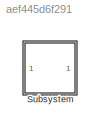
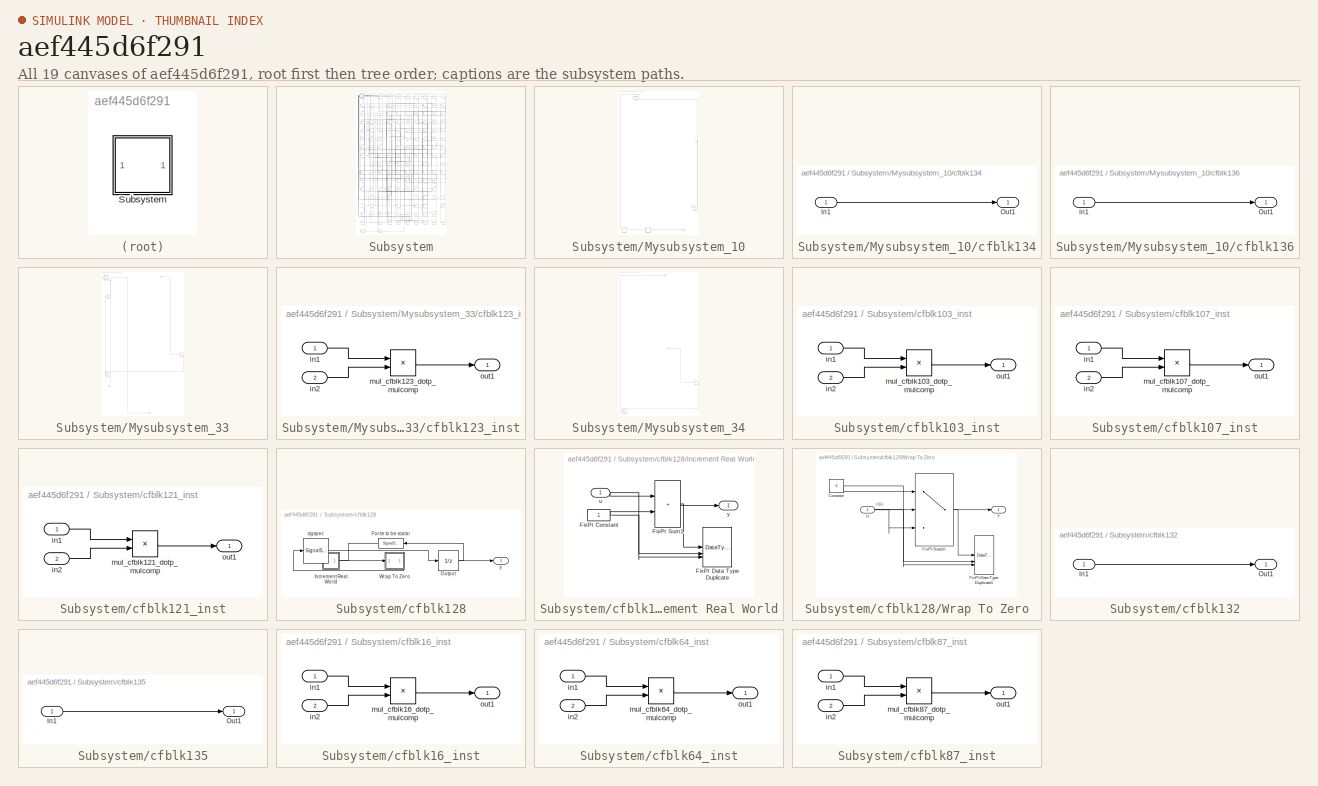
[diagram: thumbnail index - all 19 canvases of the model, root first then tree order]
MODEL slx_aef445d6f291
KIND model
CONFIG AbsTol = auto
CONFIG EnableMultiTasking = off
CONFIG FixedStep = auto
CONFIG MaxStep = auto
CONFIG MinStep = auto
CONFIG RelTol = 1e-3
CONFIG SampleTimeConstraint = Unconstrained
CONFIG SolverName = VariableStepAuto
CONFIG StartTime = 0.0
CONFIG StopTime = 10.0
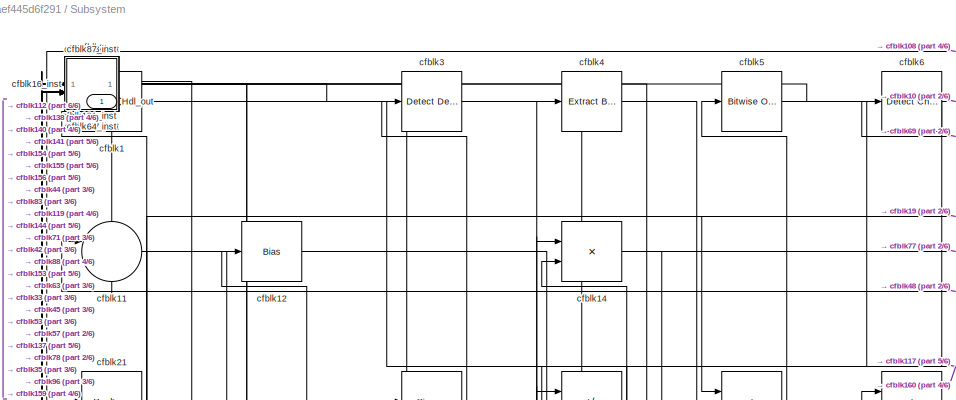
[diagram: Subsystem - part 1/6, top left region]
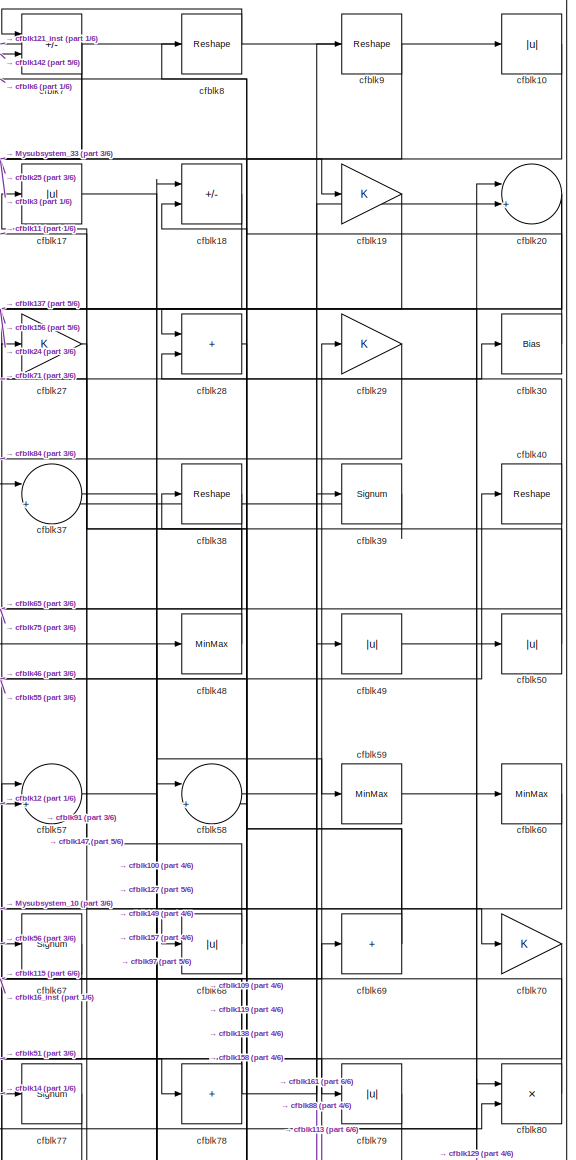
[diagram: Subsystem - part 2/6, top right region]
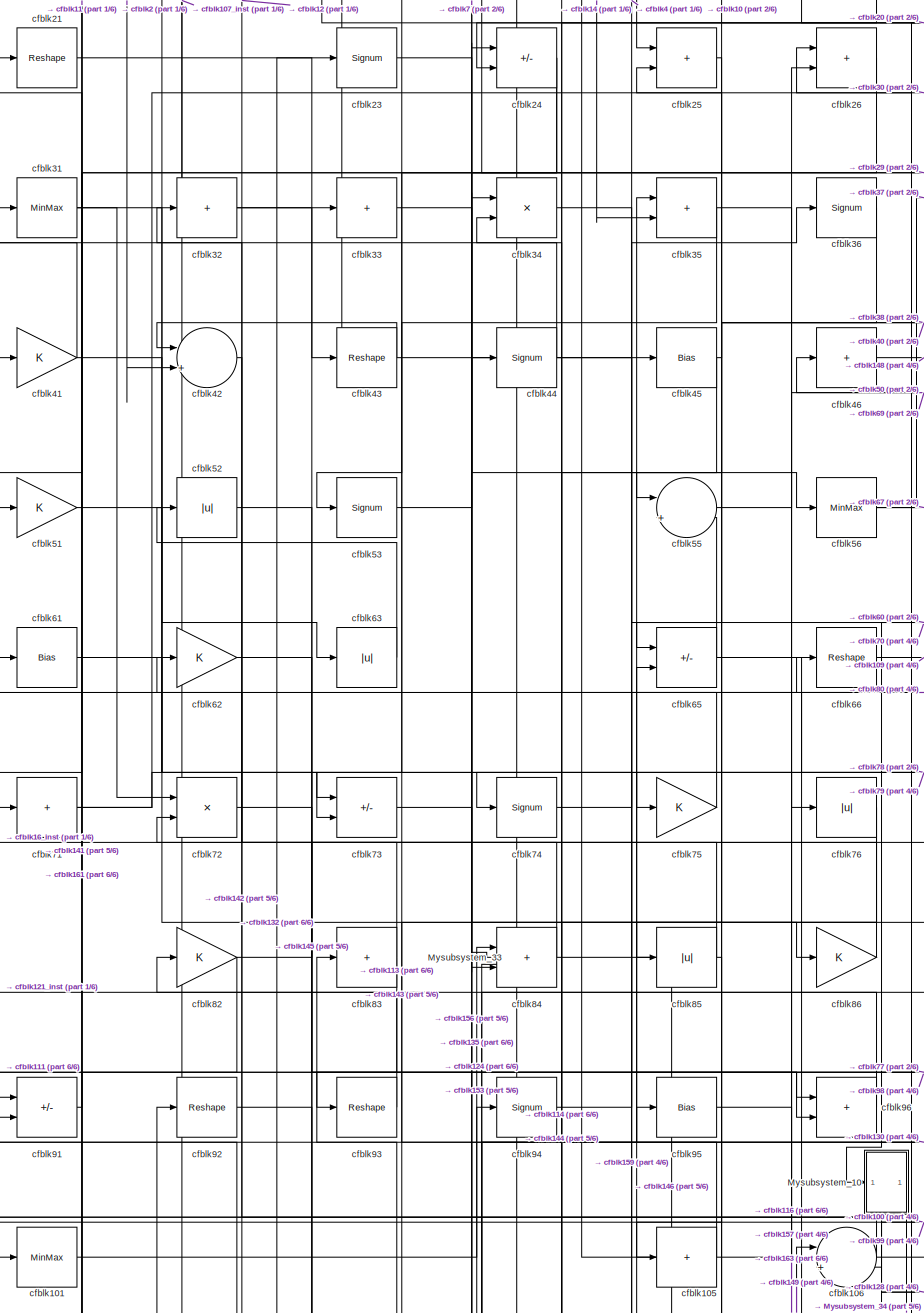
[diagram: Subsystem - part 3/6, middle left region]
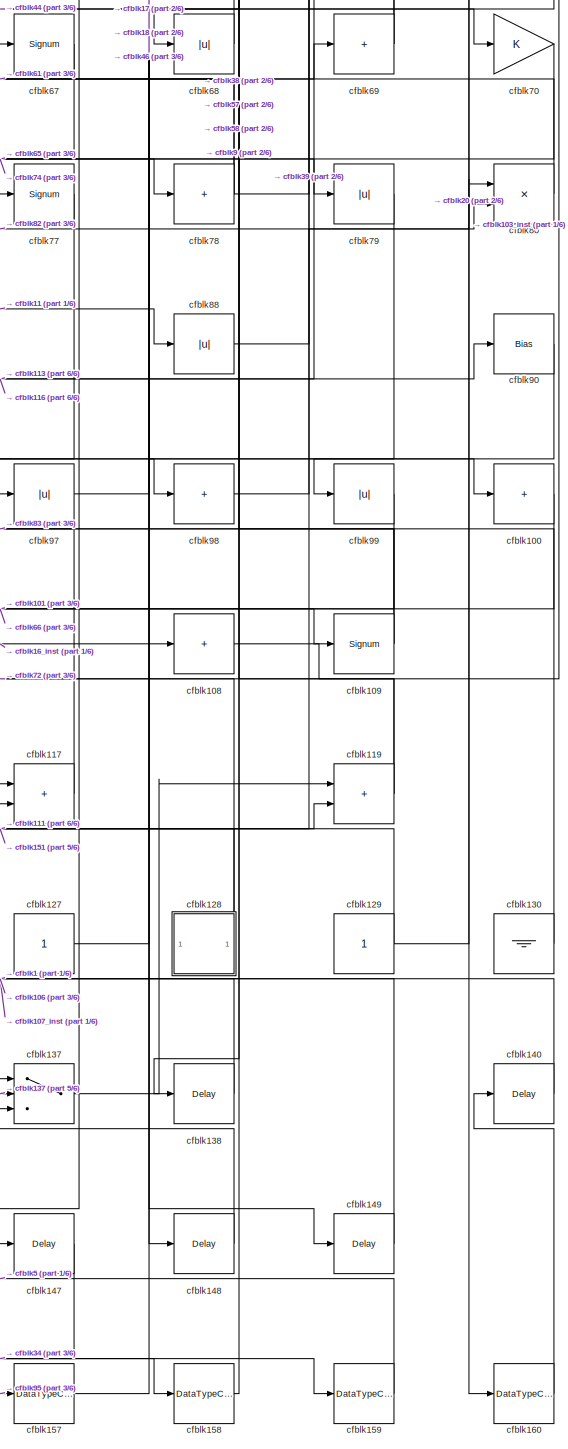
[diagram: Subsystem - part 4/6, middle right region]
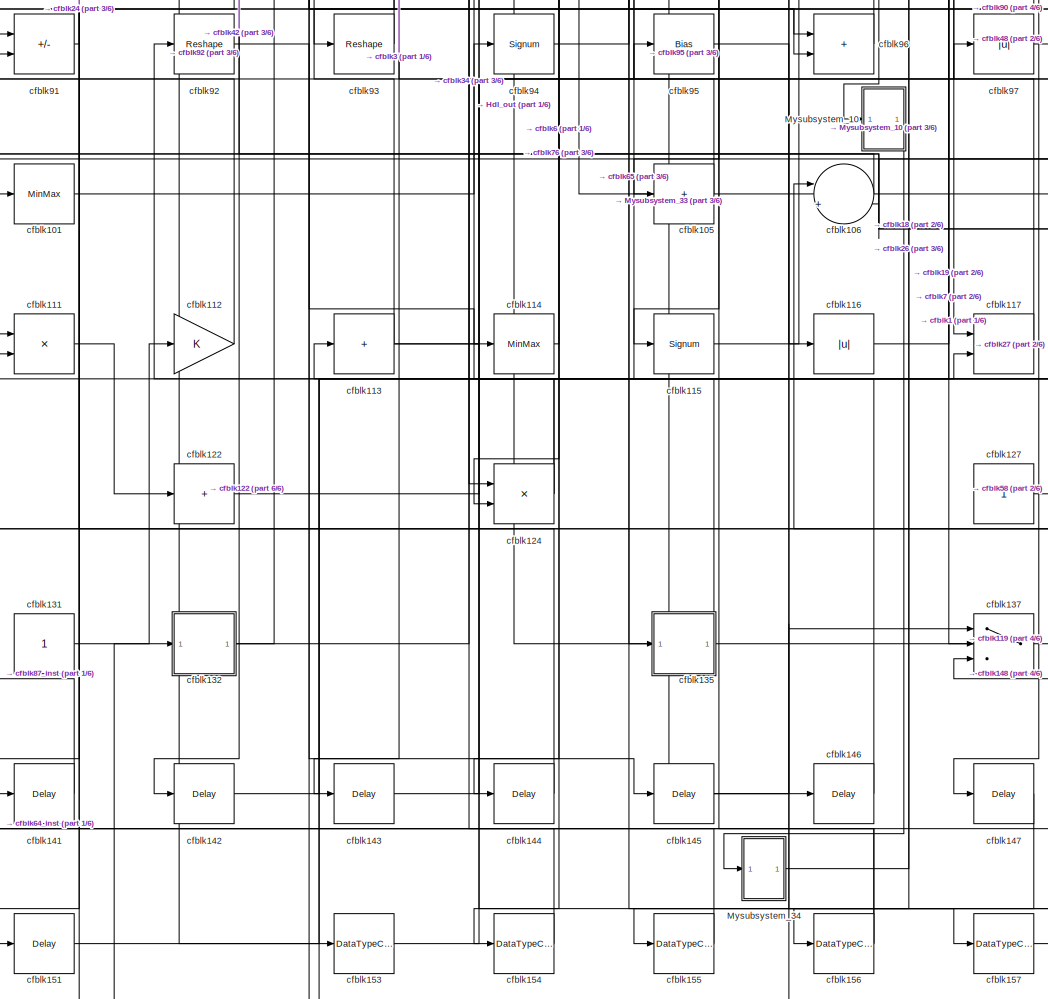
[diagram: Subsystem - part 5/6, bottom center region]
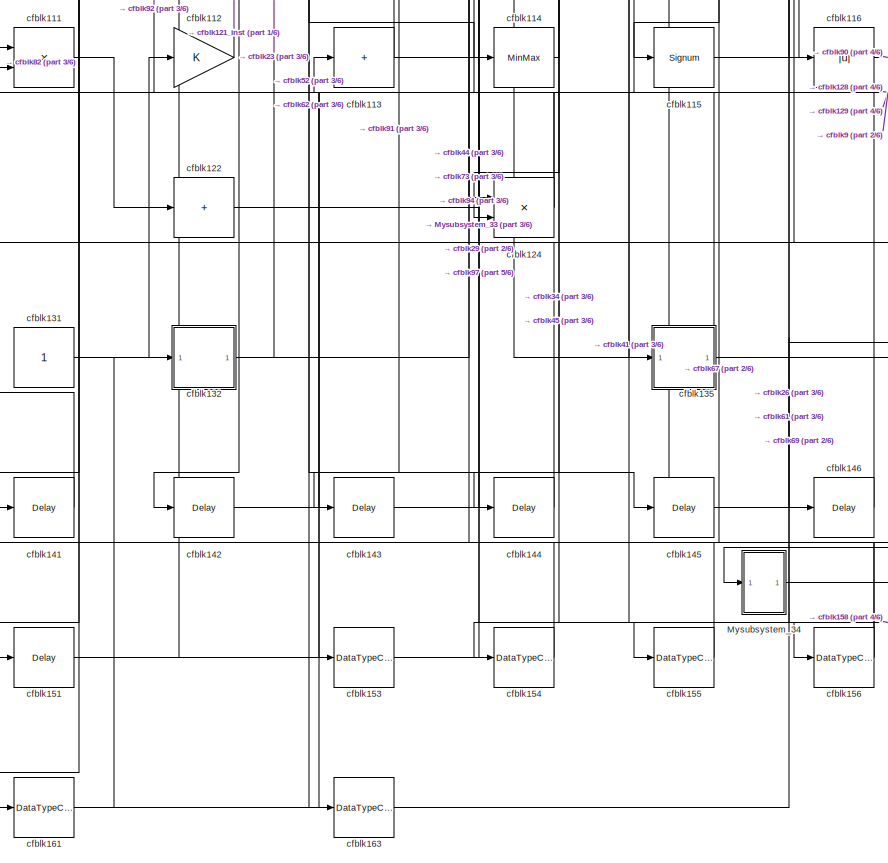
[diagram: Subsystem - part 6/6, bottom left region]
BLOCK [SubSystem] Subsystem
BLOCK [Outport] Subsystem/Hdl_out
  OutDataTypeStr = uint8
  SampleTime = 1
BLOCK [SubSystem] Subsystem/Mysubsystem_10
BLOCK [Inport] Subsystem/Mysubsystem_10/In1
  OutDataTypeStr = uint8
  PortDimensions = 1
  SampleTime = 1
BLOCK [Outport] Subsystem/Mysubsystem_10/Out1
  SampleTime = 1
BLOCK [Abs] Subsystem/Mysubsystem_10/cfblk120
  SaturateOnIntegerOverflow = off
BLOCK [SubSystem] Subsystem/Mysubsystem_10/cfblk134
BLOCK [Inport] Subsystem/Mysubsystem_10/cfblk134/In1
  OutDataTypeStr = uint8
  PortDimensions = 1
  SampleTime = 1
BLOCK [Outport] Subsystem/Mysubsystem_10/cfblk134/Out1
  SampleTime = 1
BLOCK [SubSystem] Subsystem/Mysubsystem_10/cfblk136
BLOCK [Inport] Subsystem/Mysubsystem_10/cfblk136/In1
  OutDataTypeStr = uint8
  PortDimensions = 1
  SampleTime = 1
BLOCK [Outport] Subsystem/Mysubsystem_10/cfblk136/Out1
  SampleTime = 1
BLOCK [Signum] Subsystem/Mysubsystem_10/cfblk15
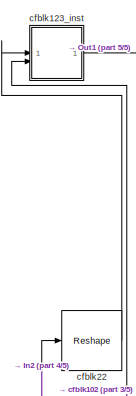
[diagram: Subsystem/Mysubsystem_33 - part 1/5, top left region]
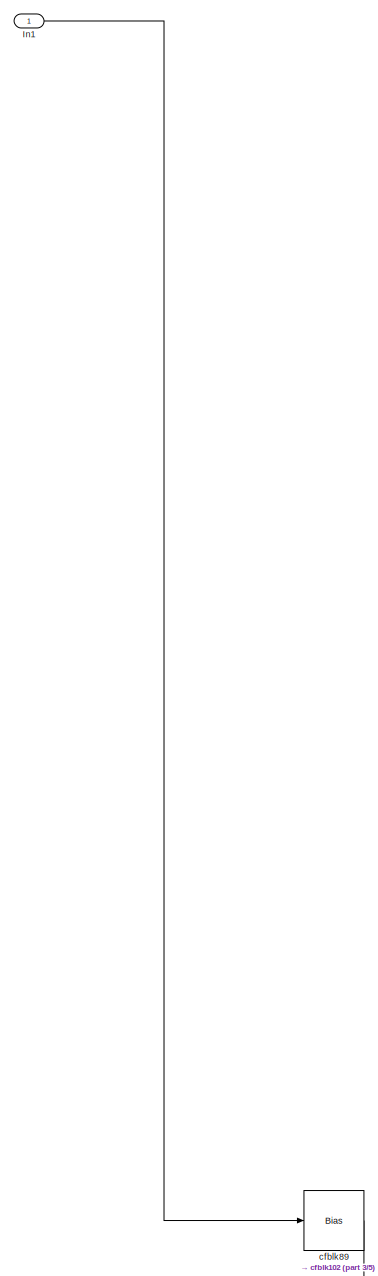
[diagram: Subsystem/Mysubsystem_33 - part 2/5, top right region]
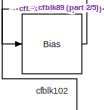
[diagram: Subsystem/Mysubsystem_33 - part 3/5, bottom left region]
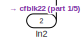
[diagram: Subsystem/Mysubsystem_33 - part 4/5, bottom left region]
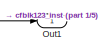
[diagram: Subsystem/Mysubsystem_33 - part 5/5, bottom center region]
BLOCK [SubSystem] Subsystem/Mysubsystem_33
BLOCK [Inport] Subsystem/Mysubsystem_33/In1
  OutDataTypeStr = uint8
  PortDimensions = 1
  SampleTime = 1
BLOCK [Inport] Subsystem/Mysubsystem_33/In2
  OutDataTypeStr = uint8
  Port = 2
  PortDimensions = 1
  SampleTime = 1
BLOCK [Outport] Subsystem/Mysubsystem_33/Out1
  SampleTime = 1
BLOCK [Bias] Subsystem/Mysubsystem_33/cfblk102
  Bias = 0.0
  SaturateOnIntegerOverflow = off
BLOCK [SubSystem] Subsystem/Mysubsystem_33/cfblk123_inst
BLOCK [Inport] Subsystem/Mysubsystem_33/cfblk123_inst/in1
  OutDataTypeStr = uint8
  SampleTime = 1
BLOCK [Inport] Subsystem/Mysubsystem_33/cfblk123_inst/in2
  OutDataTypeStr = uint8
  Port = 2
  SampleTime = 1
BLOCK [Product] Subsystem/Mysubsystem_33/cfblk123_inst/mul_cfblk123_dotp_mulcomp
  Inputs = **
  OutDataTypeStr = uint16
  SampleTime = 1
BLOCK [Outport] Subsystem/Mysubsystem_33/cfblk123_inst/out1
  OutDataTypeStr = uint16
  SampleTime = 1
BLOCK [Reshape] Subsystem/Mysubsystem_33/cfblk22
BLOCK [Bias] Subsystem/Mysubsystem_33/cfblk89
  Bias = 0.0
  SaturateOnIntegerOverflow = off
BLOCK [SubSystem] Subsystem/Mysubsystem_34
BLOCK [Inport] Subsystem/Mysubsystem_34/In1
  OutDataTypeStr = uint8
  PortDimensions = 1
  SampleTime = 1
BLOCK [Outport] Subsystem/Mysubsystem_34/Out1
  SampleTime = 1
BLOCK [Delay] Subsystem/Mysubsystem_34/cfblk139
  InputPortMap = u0
  SampleTime = 1
BLOCK [DataTypeConversion] Subsystem/Mysubsystem_34/cfblk162
  OutDataTypeStr = uint8
  RndMeth = Floor
  SaturateOnIntegerOverflow = off
BLOCK [Logic] Subsystem/cfblk1
  AllPortsSameDT = off
  OutDataTypeStr = boolean
BLOCK [Abs] Subsystem/cfblk10
  OutDataTypeStr = uint8
  SaturateOnIntegerOverflow = off
BLOCK [Sum] Subsystem/cfblk100
  IconShape = rectangular
  Inputs = +
  OutDataTypeStr = uint8
BLOCK [MinMax] Subsystem/cfblk101
  OutDataTypeStr = uint8
BLOCK [SubSystem] Subsystem/cfblk103_inst
BLOCK [Inport] Subsystem/cfblk103_inst/in1
  OutDataTypeStr = uint8
  SampleTime = 1
BLOCK [Inport] Subsystem/cfblk103_inst/in2
  OutDataTypeStr = uint8
  Port = 2
  SampleTime = 1
BLOCK [Product] Subsystem/cfblk103_inst/mul_cfblk103_dotp_mulcomp
  Inputs = **
  OutDataTypeStr = uint8
  SampleTime = 1
BLOCK [Outport] Subsystem/cfblk103_inst/out1
  OutDataTypeStr = uint8
  SampleTime = 1
BLOCK [Sum] Subsystem/cfblk105
  IconShape = rectangular
  Inputs = +
  OutDataTypeStr = uint8
BLOCK [Sum] Subsystem/cfblk106
  Inputs = |++
  OutDataTypeStr = uint8
BLOCK [SubSystem] Subsystem/cfblk107_inst
BLOCK [Inport] Subsystem/cfblk107_inst/in1
  OutDataTypeStr = uint8
  SampleTime = 1
BLOCK [Inport] Subsystem/cfblk107_inst/in2
  OutDataTypeStr = uint8
  Port = 2
  SampleTime = 1
BLOCK [Product] Subsystem/cfblk107_inst/mul_cfblk107_dotp_mulcomp
  Inputs = **
  OutDataTypeStr = uint8
  SampleTime = 1
BLOCK [Outport] Subsystem/cfblk107_inst/out1
  OutDataTypeStr = uint8
  SampleTime = 1
BLOCK [Sum] Subsystem/cfblk108
  IconShape = rectangular
  Inputs = +
  OutDataTypeStr = uint8
BLOCK [Signum] Subsystem/cfblk109
BLOCK [Sum] Subsystem/cfblk11
  Inputs = |++
  OutDataTypeStr = uint8
BLOCK [Product] Subsystem/cfblk111
  Inputs = */
  OutDataTypeStr = uint8
  RndMeth = Zero
  SaturateOnIntegerOverflow = on
BLOCK [Gain] Subsystem/cfblk112
  OutDataTypeStr = uint8
BLOCK [Sum] Subsystem/cfblk113
  IconShape = rectangular
  Inputs = +
  OutDataTypeStr = uint8
BLOCK [MinMax] Subsystem/cfblk114
  OutDataTypeStr = uint8
BLOCK [Signum] Subsystem/cfblk115
BLOCK [Abs] Subsystem/cfblk116
  OutDataTypeStr = uint8
  SaturateOnIntegerOverflow = off
BLOCK [Sum] Subsystem/cfblk117
  IconShape = rectangular
  OutDataTypeStr = uint8
BLOCK [Sum] Subsystem/cfblk119
  IconShape = rectangular
  OutDataTypeStr = uint8
BLOCK [Bias] Subsystem/cfblk12
  Bias = 0.0
  SaturateOnIntegerOverflow = off
BLOCK [SubSystem] Subsystem/cfblk121_inst
BLOCK [Inport] Subsystem/cfblk121_inst/in1
  OutDataTypeStr = uint8
  SampleTime = 1
BLOCK [Inport] Subsystem/cfblk121_inst/in2
  OutDataTypeStr = uint8
  Port = 2
  SampleTime = 1
BLOCK [Product] Subsystem/cfblk121_inst/mul_cfblk121_dotp_mulcomp
  Inputs = **
  OutDataTypeStr = uint8
  SampleTime = 1
BLOCK [Outport] Subsystem/cfblk121_inst/out1
  OutDataTypeStr = uint8
  SampleTime = 1
BLOCK [Sum] Subsystem/cfblk122
  IconShape = rectangular
  Inputs = +
  OutDataTypeStr = uint8
BLOCK [Product] Subsystem/cfblk124
  Inputs = */
  OutDataTypeStr = uint8
  RndMeth = Zero
  SaturateOnIntegerOverflow = on
BLOCK [Constant] Subsystem/cfblk127
  OutDataTypeStr = uint8
  SampleTime = -1
BLOCK [SubSystem] Subsystem/cfblk128
BLOCK [SignalSpecification] Subsystem/cfblk128/Force to be scalar
  Dimensions = 1
  DisableCoverage = on
BLOCK [SubSystem] Subsystem/cfblk128/Increment Real World
BLOCK [Constant] Subsystem/cfblk128/Increment Real World/FixPt Constant
  DisableCoverage = on
  OutDataTypeStr = Inherit: Inherit via back propagation
  SampleTime = -1
BLOCK [DataTypeDuplicate] Subsystem/cfblk128/Increment Real World/FixPt Data Type Duplicate
  DisableCoverage = on
  NumInputPorts = 3
BLOCK [Sum] Subsystem/cfblk128/Increment Real World/FixPt Sum1
  IconShape = rectangular
  InputSameDT = on
  LockScale = on
  OutDataTypeStr = Inherit: Inherit via back propagation
BLOCK [Inport] Subsystem/cfblk128/Increment Real World/u
  OutDataTypeStr = uint8
  SampleTime = 1
BLOCK [Outport] Subsystem/cfblk128/Increment Real World/y
  SampleTime = 1
BLOCK [UnitDelay] Subsystem/cfblk128/Output
  HasFrameUpgradeWarning = on
  InitialCondition = 0.0
  SampleTime = tsamp
BLOCK [SubSystem] Subsystem/cfblk128/Wrap To Zero
BLOCK [Constant] Subsystem/cfblk128/Wrap To Zero/Constant
  DisableCoverage = on
  OutDataTypeStr = Inherit: Inherit via back propagation
  SampleTime = -1
  Value = 0
BLOCK [DataTypeDuplicate] Subsystem/cfblk128/Wrap To Zero/FixPt Data Type Duplicate1
  DisableCoverage = on
  NumInputPorts = 3
BLOCK [Switch] Subsystem/cfblk128/Wrap To Zero/FixPt Switch
  Criteria = u2 > Threshold
  InputSameDT = off
  OutDataTypeStr = Inherit: Inherit via back propagation
  SaturateOnIntegerOverflow = off
  Threshold = Threshold
  ZeroCross = off
BLOCK [Inport] Subsystem/cfblk128/Wrap To Zero/U
  OutDataTypeStr = uint8
  SampleTime = 1
BLOCK [Outport] Subsystem/cfblk128/Wrap To Zero/Y
  SampleTime = 1
BLOCK [SignalSpecification] Subsystem/cfblk128/sigspec
  Dimensions = 1
  OutDataTypeStr = uint8
BLOCK [Outport] Subsystem/cfblk128/y
  SampleTime = 1
BLOCK [Constant] Subsystem/cfblk129
  OutDataTypeStr = uint8
  SampleTime = -1
BLOCK [Ground] Subsystem/cfblk130
BLOCK [Constant] Subsystem/cfblk131
  OutDataTypeStr = uint8
  SampleTime = -1
BLOCK [SubSystem] Subsystem/cfblk132
BLOCK [Inport] Subsystem/cfblk132/In1
  OutDataTypeStr = uint8
  PortDimensions = 1
  SampleTime = 1
BLOCK [Outport] Subsystem/cfblk132/Out1
  SampleTime = 1
BLOCK [SubSystem] Subsystem/cfblk135
BLOCK [Inport] Subsystem/cfblk135/In1
  OutDataTypeStr = uint8
  PortDimensions = 1
  SampleTime = 1
BLOCK [Outport] Subsystem/cfblk135/Out1
  SampleTime = 1
BLOCK [Switch] Subsystem/cfblk137
  InputSameDT = off
  OutDataTypeStr = uint8
  SaturateOnIntegerOverflow = off
BLOCK [Delay] Subsystem/cfblk138
  InputPortMap = u0
  SampleTime = 1
BLOCK [Product] Subsystem/cfblk14
  Inputs = */
  OutDataTypeStr = uint8
  RndMeth = Zero
  SaturateOnIntegerOverflow = on
BLOCK [Delay] Subsystem/cfblk140
  InputPortMap = u0
  SampleTime = 1
BLOCK [Delay] Subsystem/cfblk141
  InputPortMap = u0
  SampleTime = 1
BLOCK [Delay] Subsystem/cfblk142
  InputPortMap = u0
  SampleTime = 1
BLOCK [Delay] Subsystem/cfblk143
  InputPortMap = u0
  SampleTime = 1
BLOCK [Delay] Subsystem/cfblk144
  InputPortMap = u0
  SampleTime = 1
BLOCK [Delay] Subsystem/cfblk145
  InputPortMap = u0
  SampleTime = 1
BLOCK [Delay] Subsystem/cfblk146
  InputPortMap = u0
  SampleTime = 1
BLOCK [Delay] Subsystem/cfblk147
  InputPortMap = u0
  SampleTime = 1
BLOCK [Delay] Subsystem/cfblk148
  InputPortMap = u0
  SampleTime = 1
BLOCK [Delay] Subsystem/cfblk149
  InputPortMap = u0
  SampleTime = 1
BLOCK [Delay] Subsystem/cfblk151
  InputPortMap = u0
  SampleTime = 1
BLOCK [DataTypeConversion] Subsystem/cfblk153
  OutDataTypeStr = uint8
  RndMeth = Floor
  SaturateOnIntegerOverflow = off
BLOCK [DataTypeConversion] Subsystem/cfblk154
  OutDataTypeStr = uint8
  RndMeth = Floor
  SaturateOnIntegerOverflow = off
BLOCK [DataTypeConversion] Subsystem/cfblk155
  OutDataTypeStr = uint8
  RndMeth = Floor
  SaturateOnIntegerOverflow = off
BLOCK [DataTypeConversion] Subsystem/cfblk156
  OutDataTypeStr = uint8
  RndMeth = Floor
  SaturateOnIntegerOverflow = off
BLOCK [DataTypeConversion] Subsystem/cfblk157
  OutDataTypeStr = uint8
  RndMeth = Floor
  SaturateOnIntegerOverflow = off
BLOCK [DataTypeConversion] Subsystem/cfblk158
  OutDataTypeStr = uint8
  RndMeth = Floor
  SaturateOnIntegerOverflow = off
BLOCK [DataTypeConversion] Subsystem/cfblk159
  OutDataTypeStr = uint8
  RndMeth = Floor
  SaturateOnIntegerOverflow = off
BLOCK [DataTypeConversion] Subsystem/cfblk160
  OutDataTypeStr = uint8
  RndMeth = Floor
  SaturateOnIntegerOverflow = off
BLOCK [DataTypeConversion] Subsystem/cfblk161
  OutDataTypeStr = uint8
  RndMeth = Floor
  SaturateOnIntegerOverflow = off
BLOCK [DataTypeConversion] Subsystem/cfblk163
  OutDataTypeStr = uint8
  RndMeth = Floor
  SaturateOnIntegerOverflow = off
BLOCK [SubSystem] Subsystem/cfblk16_inst
BLOCK [Inport] Subsystem/cfblk16_inst/in1
  OutDataTypeStr = uint8
  SampleTime = 1
BLOCK [Inport] Subsystem/cfblk16_inst/in2
  OutDataTypeStr = uint8
  Port = 2
  SampleTime = 1
BLOCK [Product] Subsystem/cfblk16_inst/mul_cfblk16_dotp_mulcomp
  Inputs = **
  OutDataTypeStr = uint8
  SampleTime = 1
BLOCK [Outport] Subsystem/cfblk16_inst/out1
  OutDataTypeStr = uint8
  SampleTime = 1
BLOCK [Abs] Subsystem/cfblk17
  OutDataTypeStr = uint8
  SaturateOnIntegerOverflow = off
BLOCK [Sum] Subsystem/cfblk18
  IconShape = rectangular
  Inputs = +-
  OutDataTypeStr = uint8
BLOCK [Gain] Subsystem/cfblk19
  OutDataTypeStr = uint8
BLOCK [Constant] Subsystem/cfblk2
  OutDataTypeStr = uint8
  SampleTime = 1
  Value = 0
BLOCK [Sum] Subsystem/cfblk20
  Inputs = |++
  OutDataTypeStr = uint8
BLOCK [Reshape] Subsystem/cfblk21
BLOCK [Signum] Subsystem/cfblk23
BLOCK [Sum] Subsystem/cfblk24
  IconShape = rectangular
  Inputs = +-
  OutDataTypeStr = uint8
BLOCK [Sum] Subsystem/cfblk25
  IconShape = rectangular
  OutDataTypeStr = uint8
BLOCK [Sum] Subsystem/cfblk26
  IconShape = rectangular
  OutDataTypeStr = uint8
BLOCK [Gain] Subsystem/cfblk27
  OutDataTypeStr = uint8
BLOCK [Sum] Subsystem/cfblk28
  IconShape = rectangular
  OutDataTypeStr = uint8
BLOCK [Gain] Subsystem/cfblk29
  OutDataTypeStr = uint8
BLOCK [Reference] Subsystem/cfblk3  REF=simulink/Logic and Bit
Operations/Detect
Decrease
  LibrarySourceBlock = hdlsllib/Logic and Bit\nOperations/Detect\nDecrease
  SourceBlock = simulink/Logic and Bit\nOperations/Detect\nDecrease
  SourceType = Detect Decrease
BLOCK [Bias] Subsystem/cfblk30
  Bias = 0.0
  SaturateOnIntegerOverflow = off
BLOCK [MinMax] Subsystem/cfblk31
  OutDataTypeStr = uint8
BLOCK [Sum] Subsystem/cfblk32
  IconShape = rectangular
  Inputs = +
  OutDataTypeStr = uint8
BLOCK [Sum] Subsystem/cfblk33
  IconShape = rectangular
  Inputs = +
  OutDataTypeStr = uint8
BLOCK [Product] Subsystem/cfblk34
  Inputs = */
  OutDataTypeStr = uint8
  RndMeth = Zero
  SaturateOnIntegerOverflow = on
BLOCK [Sum] Subsystem/cfblk35
  IconShape = rectangular
  OutDataTypeStr = uint8
BLOCK [Signum] Subsystem/cfblk36
BLOCK [Sum] Subsystem/cfblk37
  Inputs = |++
  OutDataTypeStr = uint8
BLOCK [Reshape] Subsystem/cfblk38
BLOCK [Signum] Subsystem/cfblk39
BLOCK [Reference] Subsystem/cfblk4  REF=simulink/Logic and Bit
Operations/Extract Bits
  LibrarySourceBlock = hdlsllib/Logic and Bit\nOperations/Extract Bits
  SourceBlock = simulink/Logic and Bit\nOperations/Extract Bits
  SourceType = Extract Bits
BLOCK [Reshape] Subsystem/cfblk40
BLOCK [Gain] Subsystem/cfblk41
  OutDataTypeStr = uint8
BLOCK [Sum] Subsystem/cfblk42
  Inputs = |++
  OutDataTypeStr = uint8
BLOCK [Reshape] Subsystem/cfblk43
BLOCK [Signum] Subsystem/cfblk44
BLOCK [Bias] Subsystem/cfblk45
  Bias = 0.0
  SaturateOnIntegerOverflow = off
BLOCK [Sum] Subsystem/cfblk46
  IconShape = rectangular
  Inputs = +
  OutDataTypeStr = uint8
BLOCK [MinMax] Subsystem/cfblk48
  OutDataTypeStr = uint8
BLOCK [Abs] Subsystem/cfblk49
  OutDataTypeStr = uint8
  SaturateOnIntegerOverflow = off
BLOCK [Reference] Subsystem/cfblk5  REF=simulink/Logic and Bit
Operations/Bitwise
Operator
  LibrarySourceBlock = hdlsllib/Logic and Bit\nOperations/Bitwise\nOperator
  SourceBlock = simulink/Logic and Bit\nOperations/Bitwise\nOperator
  SourceType = Bitwise Operator
BLOCK [Abs] Subsystem/cfblk50
  OutDataTypeStr = uint8
  SaturateOnIntegerOverflow = off
BLOCK [Gain] Subsystem/cfblk51
  OutDataTypeStr = uint8
BLOCK [Abs] Subsystem/cfblk52
  OutDataTypeStr = uint8
  SaturateOnIntegerOverflow = off
BLOCK [Signum] Subsystem/cfblk53
BLOCK [Sum] Subsystem/cfblk55
  Inputs = |++
  OutDataTypeStr = uint8
BLOCK [MinMax] Subsystem/cfblk56
  OutDataTypeStr = uint8
BLOCK [Sum] Subsystem/cfblk57
  Inputs = |++
  OutDataTypeStr = uint8
BLOCK [Sum] Subsystem/cfblk58
  Inputs = |++
  OutDataTypeStr = uint8
BLOCK [MinMax] Subsystem/cfblk59
  OutDataTypeStr = uint8
BLOCK [Reference] Subsystem/cfblk6  REF=simulink/Logic and Bit
Operations/Detect
Change
  LibrarySourceBlock = hdlsllib/Logic and Bit\nOperations/Detect\nChange
  SourceBlock = simulink/Logic and Bit\nOperations/Detect\nChange
  SourceType = Detect Change
BLOCK [MinMax] Subsystem/cfblk60
  OutDataTypeStr = uint8
BLOCK [Bias] Subsystem/cfblk61
  Bias = 0.0
  SaturateOnIntegerOverflow = off
BLOCK [Gain] Subsystem/cfblk62
  OutDataTypeStr = uint8
BLOCK [Abs] Subsystem/cfblk63
  OutDataTypeStr = uint8
  SaturateOnIntegerOverflow = off
BLOCK [SubSystem] Subsystem/cfblk64_inst
BLOCK [Inport] Subsystem/cfblk64_inst/in1
  OutDataTypeStr = uint8
  SampleTime = 1
BLOCK [Inport] Subsystem/cfblk64_inst/in2
  OutDataTypeStr = uint8
  Port = 2
  SampleTime = 1
BLOCK [Product] Subsystem/cfblk64_inst/mul_cfblk64_dotp_mulcomp
  Inputs = **
  OutDataTypeStr = uint8
  SampleTime = 1
BLOCK [Outport] Subsystem/cfblk64_inst/out1
  OutDataTypeStr = uint8
  SampleTime = 1
BLOCK [Sum] Subsystem/cfblk65
  IconShape = rectangular
  Inputs = +-
  OutDataTypeStr = uint8
BLOCK [Reshape] Subsystem/cfblk66
BLOCK [Signum] Subsystem/cfblk67
BLOCK [Abs] Subsystem/cfblk68
  OutDataTypeStr = uint8
  SaturateOnIntegerOverflow = off
BLOCK [Sum] Subsystem/cfblk69
  IconShape = rectangular
  Inputs = +
  OutDataTypeStr = uint8
BLOCK [Sum] Subsystem/cfblk7
  IconShape = rectangular
  Inputs = +-
  OutDataTypeStr = uint8
BLOCK [Gain] Subsystem/cfblk70
  OutDataTypeStr = uint8
BLOCK [Sum] Subsystem/cfblk71
  IconShape = rectangular
  Inputs = +
  OutDataTypeStr = uint8
BLOCK [Product] Subsystem/cfblk72
  Inputs = */
  OutDataTypeStr = uint8
  RndMeth = Zero
  SaturateOnIntegerOverflow = on
BLOCK [Sum] Subsystem/cfblk73
  IconShape = rectangular
  Inputs = +-
  OutDataTypeStr = uint8
BLOCK [Signum] Subsystem/cfblk74
BLOCK [Gain] Subsystem/cfblk75
  OutDataTypeStr = uint8
BLOCK [Abs] Subsystem/cfblk76
  OutDataTypeStr = uint8
  SaturateOnIntegerOverflow = off
BLOCK [Signum] Subsystem/cfblk77
BLOCK [Sum] Subsystem/cfblk78
  IconShape = rectangular
  Inputs = +
  OutDataTypeStr = uint8
BLOCK [Abs] Subsystem/cfblk79
  OutDataTypeStr = uint8
  SaturateOnIntegerOverflow = off
BLOCK [Reshape] Subsystem/cfblk8
BLOCK [Product] Subsystem/cfblk80
  Inputs = */
  OutDataTypeStr = uint8
  RndMeth = Zero
  SaturateOnIntegerOverflow = on
BLOCK [Gain] Subsystem/cfblk82
  OutDataTypeStr = uint8
BLOCK [Sum] Subsystem/cfblk83
  IconShape = rectangular
  Inputs = +
  OutDataTypeStr = uint8
BLOCK [Sum] Subsystem/cfblk84
  IconShape = rectangular
  OutDataTypeStr = uint8
BLOCK [Abs] Subsystem/cfblk85
  OutDataTypeStr = uint8
  SaturateOnIntegerOverflow = off
BLOCK [Gain] Subsystem/cfblk86
  OutDataTypeStr = uint8
BLOCK [SubSystem] Subsystem/cfblk87_inst
BLOCK [Inport] Subsystem/cfblk87_inst/in1
  OutDataTypeStr = uint8
  SampleTime = 1
BLOCK [Inport] Subsystem/cfblk87_inst/in2
  OutDataTypeStr = uint8
  Port = 2
  SampleTime = 1
BLOCK [Product] Subsystem/cfblk87_inst/mul_cfblk87_dotp_mulcomp
  Inputs = **
  OutDataTypeStr = uint8
  SampleTime = 1
BLOCK [Outport] Subsystem/cfblk87_inst/out1
  OutDataTypeStr = uint8
  SampleTime = 1
BLOCK [Abs] Subsystem/cfblk88
  OutDataTypeStr = uint8
  SaturateOnIntegerOverflow = off
BLOCK [Reshape] Subsystem/cfblk9
BLOCK [Bias] Subsystem/cfblk90
  Bias = 0.0
  SaturateOnIntegerOverflow = off
BLOCK [Sum] Subsystem/cfblk91
  IconShape = rectangular
  Inputs = +-
  OutDataTypeStr = uint8
BLOCK [Reshape] Subsystem/cfblk92
BLOCK [Reshape] Subsystem/cfblk93
BLOCK [Signum] Subsystem/cfblk94
BLOCK [Bias] Subsystem/cfblk95
  Bias = 0.0
  SaturateOnIntegerOverflow = off
BLOCK [Sum] Subsystem/cfblk96
  IconShape = rectangular
  OutDataTypeStr = uint8
BLOCK [Abs] Subsystem/cfblk97
  OutDataTypeStr = uint8
  SaturateOnIntegerOverflow = off
BLOCK [Sum] Subsystem/cfblk98
  IconShape = rectangular
  Inputs = +
  OutDataTypeStr = uint8
BLOCK [Abs] Subsystem/cfblk99
  OutDataTypeStr = uint8
  SaturateOnIntegerOverflow = off
ANNOTATION Subsystem/cfblk128/Wrap To Zero: U(k)
LINE Subsystem/Mysubsystem_10/In1:1 -> Subsystem/Mysubsystem_10/cfblk120:1
LINE Subsystem/Mysubsystem_10/cfblk120:1 -> Subsystem/Mysubsystem_10/cfblk15:1
LINE Subsystem/Mysubsystem_10/cfblk134/In1:1 -> Subsystem/Mysubsystem_10/cfblk134/Out1:1
LINE Subsystem/Mysubsystem_10/cfblk134:1 -> Subsystem/Mysubsystem_10/cfblk136:1
LINE Subsystem/Mysubsystem_10/cfblk136/In1:1 -> Subsystem/Mysubsystem_10/cfblk136/Out1:1
LINE Subsystem/Mysubsystem_10/cfblk136:1 -> Subsystem/Mysubsystem_10/Out1:1
LINE Subsystem/Mysubsystem_10/cfblk15:1 -> Subsystem/Mysubsystem_10/cfblk134:1
LINE Subsystem/Mysubsystem_10:1 -> Subsystem/Mysubsystem_34:1
LINE Subsystem/Mysubsystem_33/In1:1 -> Subsystem/Mysubsystem_33/cfblk89:1
LINE Subsystem/Mysubsystem_33/In2:1 -> Subsystem/Mysubsystem_33/cfblk22:1
LINE Subsystem/Mysubsystem_33/cfblk102:1 -> Subsystem/Mysubsystem_33/cfblk123_inst:2
LINE Subsystem/Mysubsystem_33/cfblk123_inst/in1:1 -> Subsystem/Mysubsystem_33/cfblk123_inst/mul_cfblk123_dotp_mulcomp:1
LINE Subsystem/Mysubsystem_33/cfblk123_inst/in2:1 -> Subsystem/Mysubsystem_33/cfblk123_inst/mul_cfblk123_dotp_mulcomp:2
LINE Subsystem/Mysubsystem_33/cfblk123_inst/mul_cfblk123_dotp_mulcomp:1 -> Subsystem/Mysubsystem_33/cfblk123_inst/out1:1
LINE Subsystem/Mysubsystem_33/cfblk123_inst:1 -> Subsystem/Mysubsystem_33/Out1:1
LINE Subsystem/Mysubsystem_33/cfblk22:1 -> Subsystem/Mysubsystem_33/cfblk123_inst:1
LINE Subsystem/Mysubsystem_33/cfblk89:1 -> Subsystem/Mysubsystem_33/cfblk102:1
LINE Subsystem/Mysubsystem_33:1 -> Subsystem/cfblk146:1
LINE Subsystem/Mysubsystem_34/In1:1 -> Subsystem/Mysubsystem_34/cfblk139:1
LINE Subsystem/Mysubsystem_34/cfblk139:1 -> Subsystem/Mysubsystem_34/cfblk162:1
LINE Subsystem/Mysubsystem_34/cfblk162:1 -> Subsystem/Mysubsystem_34/Out1:1
LINE Subsystem/Mysubsystem_34:1 -> Subsystem/cfblk26:1
LINE Subsystem/cfblk100:1 -> Subsystem/cfblk101:1
LINE Subsystem/cfblk101:1 -> Subsystem/cfblk84:1
LINE Subsystem/cfblk103_inst/in1:1 -> Subsystem/cfblk103_inst/mul_cfblk103_dotp_mulcomp:1
LINE Subsystem/cfblk103_inst/in2:1 -> Subsystem/cfblk103_inst/mul_cfblk103_dotp_mulcomp:2
LINE Subsystem/cfblk103_inst/mul_cfblk103_dotp_mulcomp:1 -> Subsystem/cfblk103_inst/out1:1
LINE Subsystem/cfblk103_inst:1 -> Subsystem/cfblk4:1
LINE Subsystem/cfblk105:1 -> Subsystem/cfblk35:1
LINE Subsystem/cfblk106:1 -> Subsystem/cfblk41:1
LINE Subsystem/cfblk107_inst/in1:1 -> Subsystem/cfblk107_inst/mul_cfblk107_dotp_mulcomp:1
LINE Subsystem/cfblk107_inst/in2:1 -> Subsystem/cfblk107_inst/mul_cfblk107_dotp_mulcomp:2
LINE Subsystem/cfblk107_inst/mul_cfblk107_dotp_mulcomp:1 -> Subsystem/cfblk107_inst/out1:1
NET Subsystem/cfblk107_inst:1 -> Subsystem/cfblk33:1, Subsystem/cfblk45:1
LINE Subsystem/cfblk108:1 -> Subsystem/cfblk103_inst:1
NET Subsystem/cfblk109:1 -> Subsystem/cfblk57:1, Subsystem/cfblk58:2
LINE Subsystem/cfblk10:1 -> Subsystem/cfblk25:1
LINE Subsystem/cfblk111:1 -> Subsystem/cfblk122:1
LINE Subsystem/cfblk112:1 -> Subsystem/cfblk121_inst:1
NET Subsystem/cfblk113:1 -> Subsystem/cfblk158:1, Subsystem/cfblk29:1, Subsystem/cfblk91:1
LINE Subsystem/cfblk114:1 -> Subsystem/cfblk34:2
LINE Subsystem/cfblk115:1 -> Subsystem/cfblk69:1
LINE Subsystem/cfblk116:1 -> Subsystem/cfblk90:1
LINE Subsystem/cfblk117:1 -> Subsystem/cfblk3:1
NET Subsystem/cfblk119:1 -> Subsystem/cfblk103_inst:2, Subsystem/cfblk38:1
NET Subsystem/cfblk11:1 -> Subsystem/cfblk71:1, Subsystem/cfblk88:1
LINE Subsystem/cfblk121_inst/in1:1 -> Subsystem/cfblk121_inst/mul_cfblk121_dotp_mulcomp:1
LINE Subsystem/cfblk121_inst/in2:1 -> Subsystem/cfblk121_inst/mul_cfblk121_dotp_mulcomp:2
LINE Subsystem/cfblk121_inst/mul_cfblk121_dotp_mulcomp:1 -> Subsystem/cfblk121_inst/out1:1
LINE Subsystem/cfblk121_inst:1 -> Subsystem/cfblk10:1
LINE Subsystem/cfblk122:1 -> Subsystem/cfblk97:1
NET Subsystem/cfblk124:1 -> Subsystem/Mysubsystem_33:2, Subsystem/cfblk92:1
LINE Subsystem/cfblk127:1 -> Subsystem/cfblk58:1
NET Subsystem/cfblk128:1 -> Subsystem/cfblk113:1, Subsystem/cfblk72:2
NET Subsystem/cfblk129:1 -> Subsystem/cfblk111:1, Subsystem/cfblk20:1
LINE Subsystem/cfblk12:1 -> Subsystem/cfblk57:2
LINE Subsystem/cfblk130:1 -> Subsystem/cfblk83:1
LINE Subsystem/cfblk131:1 -> Subsystem/cfblk112:1
LINE Subsystem/cfblk132/In1:1 -> Subsystem/cfblk132/Out1:1
NET Subsystem/cfblk132:1 -> Subsystem/cfblk23:1, Subsystem/cfblk44:1
LINE Subsystem/cfblk135/In1:1 -> Subsystem/cfblk135/Out1:1
LINE Subsystem/cfblk135:1 -> Subsystem/cfblk94:1
NET Subsystem/cfblk137:1 -> Subsystem/Hdl_out:1, Subsystem/cfblk119:1
LINE Subsystem/cfblk138:1 -> Subsystem/cfblk1:1
LINE Subsystem/cfblk140:1 -> Subsystem/cfblk107_inst:1
LINE Subsystem/cfblk141:1 -> Subsystem/cfblk87_inst:1
LINE Subsystem/cfblk142:1 -> Subsystem/cfblk7:2
LINE Subsystem/cfblk143:1 -> Subsystem/cfblk117:2
LINE Subsystem/cfblk144:1 -> Subsystem/cfblk1:2
LINE Subsystem/cfblk145:1 -> Subsystem/cfblk137:1
LINE Subsystem/cfblk146:1 -> Subsystem/cfblk65:2
LINE Subsystem/cfblk147:1 -> Subsystem/cfblk155:1
LINE Subsystem/cfblk148:1 -> Subsystem/cfblk137:3
LINE Subsystem/cfblk149:1 -> Subsystem/cfblk106:1
NET Subsystem/cfblk14:1 -> Subsystem/cfblk35:2, Subsystem/cfblk77:1
LINE Subsystem/cfblk151:1 -> Subsystem/cfblk119:2
LINE Subsystem/cfblk153:1 -> Subsystem/cfblk95:1
LINE Subsystem/cfblk154:1 -> Subsystem/cfblk64_inst:1
LINE Subsystem/cfblk155:1 -> Subsystem/cfblk64_inst:2
NET Subsystem/cfblk156:1 -> Subsystem/cfblk34:1, Subsystem/cfblk87_inst:2
LINE Subsystem/cfblk157:1 -> Subsystem/cfblk18:1
LINE Subsystem/cfblk158:1 -> Subsystem/cfblk18:2
LINE Subsystem/cfblk159:1 -> Subsystem/cfblk5:1
LINE Subsystem/cfblk160:1 -> Subsystem/cfblk140:1
NET Subsystem/cfblk161:1 -> Subsystem/cfblk132:1, Subsystem/cfblk9:1
LINE Subsystem/cfblk163:1 -> Subsystem/cfblk26:2
LINE Subsystem/cfblk16_inst/in1:1 -> Subsystem/cfblk16_inst/mul_cfblk16_dotp_mulcomp:1
LINE Subsystem/cfblk16_inst/in2:1 -> Subsystem/cfblk16_inst/mul_cfblk16_dotp_mulcomp:2
LINE Subsystem/cfblk16_inst/mul_cfblk16_dotp_mulcomp:1 -> Subsystem/cfblk16_inst/out1:1
LINE Subsystem/cfblk16_inst:1 -> Subsystem/cfblk108:1
LINE Subsystem/cfblk17:1 -> Subsystem/cfblk100:1
LINE Subsystem/cfblk18:1 -> Subsystem/cfblk156:1
LINE Subsystem/cfblk19:1 -> Subsystem/cfblk137:2
LINE Subsystem/cfblk1:1 -> Subsystem/cfblk117:1
NET Subsystem/cfblk20:1 -> Subsystem/cfblk24:2, Subsystem/cfblk28:1
LINE Subsystem/cfblk21:1 -> Subsystem/cfblk43:1
LINE Subsystem/cfblk23:1 -> Subsystem/cfblk86:1
NET Subsystem/cfblk24:1 -> Subsystem/cfblk141:1, Subsystem/cfblk53:1
LINE Subsystem/cfblk25:1 -> Subsystem/cfblk85:1
LINE Subsystem/cfblk26:1 -> Subsystem/cfblk161:1
LINE Subsystem/cfblk27:1 -> Subsystem/cfblk147:1
LINE Subsystem/cfblk28:1 -> Subsystem/cfblk68:1
LINE Subsystem/cfblk29:1 -> Subsystem/cfblk84:2
LINE Subsystem/cfblk2:1 -> Subsystem/cfblk42:2
LINE Subsystem/cfblk30:1 -> Subsystem/cfblk8:1
NET Subsystem/cfblk31:1 -> Subsystem/cfblk63:1, Subsystem/cfblk72:1
LINE Subsystem/cfblk32:1 -> Subsystem/cfblk96:2
LINE Subsystem/cfblk33:1 -> Subsystem/cfblk56:1
LINE Subsystem/cfblk34:1 -> Subsystem/cfblk159:1
NET Subsystem/cfblk35:1 -> Subsystem/cfblk73:2, Subsystem/cfblk76:1
LINE Subsystem/cfblk36:1 -> Subsystem/cfblk55:1
LINE Subsystem/cfblk37:1 -> Subsystem/cfblk59:1
LINE Subsystem/cfblk38:1 -> Subsystem/cfblk65:1
LINE Subsystem/cfblk39:1 -> Subsystem/cfblk37:2
LINE Subsystem/cfblk3:1 -> Subsystem/cfblk19:1
NET Subsystem/cfblk40:1 -> Subsystem/cfblk28:2, Subsystem/cfblk75:1
NET Subsystem/cfblk41:1 -> Subsystem/cfblk135:1, Subsystem/cfblk31:1
LINE Subsystem/cfblk42:1 -> Subsystem/cfblk142:1
LINE Subsystem/cfblk43:1 -> Subsystem/cfblk42:1
NET Subsystem/cfblk44:1 -> Subsystem/cfblk107_inst:2, Subsystem/cfblk70:1
NET Subsystem/cfblk45:1 -> Subsystem/cfblk124:2, Subsystem/cfblk25:2
LINE Subsystem/cfblk46:1 -> Subsystem/cfblk148:1
LINE Subsystem/cfblk48:1 -> Subsystem/cfblk11:1
LINE Subsystem/cfblk49:1 -> Subsystem/cfblk40:1
LINE Subsystem/cfblk4:1 -> Subsystem/cfblk96:1
LINE Subsystem/cfblk50:1 -> Subsystem/cfblk17:1
LINE Subsystem/cfblk51:1 -> Subsystem/cfblk78:1
LINE Subsystem/cfblk52:1 -> Subsystem/cfblk114:1
LINE Subsystem/cfblk53:1 -> Subsystem/cfblk14:1
LINE Subsystem/cfblk55:1 -> Subsystem/cfblk50:1
NET Subsystem/cfblk56:1 -> Subsystem/cfblk37:1, Subsystem/cfblk67:1
LINE Subsystem/cfblk57:1 -> Subsystem/cfblk149:1
LINE Subsystem/cfblk58:1 -> Subsystem/cfblk20:2
LINE Subsystem/cfblk59:1 -> Subsystem/cfblk60:1
LINE Subsystem/cfblk5:1 -> Subsystem/cfblk160:1
LINE Subsystem/cfblk60:1 -> Subsystem/Mysubsystem_10:1
LINE Subsystem/cfblk61:1 -> Subsystem/cfblk116:1
LINE Subsystem/cfblk62:1 -> Subsystem/cfblk163:1
LINE Subsystem/cfblk63:1 -> Subsystem/cfblk12:1
LINE Subsystem/cfblk64_inst/in1:1 -> Subsystem/cfblk64_inst/mul_cfblk64_dotp_mulcomp:1
LINE Subsystem/cfblk64_inst/in2:1 -> Subsystem/cfblk64_inst/mul_cfblk64_dotp_mulcomp:2
LINE Subsystem/cfblk64_inst/mul_cfblk64_dotp_mulcomp:1 -> Subsystem/cfblk64_inst/out1:1
LINE Subsystem/cfblk64_inst:1 -> Subsystem/cfblk153:1
NET Subsystem/cfblk65:1 -> Subsystem/cfblk55:2, Subsystem/cfblk79:1
LINE Subsystem/cfblk66:1 -> Subsystem/cfblk109:1
LINE Subsystem/cfblk67:1 -> Subsystem/cfblk115:1
LINE Subsystem/cfblk68:1 -> Subsystem/cfblk27:1
NET Subsystem/cfblk69:1 -> Subsystem/cfblk46:1, Subsystem/cfblk6:1
LINE Subsystem/cfblk6:1 -> Subsystem/cfblk154:1
LINE Subsystem/cfblk70:1 -> Subsystem/cfblk74:1
NET Subsystem/cfblk71:1 -> Subsystem/cfblk30:1, Subsystem/cfblk73:1
LINE Subsystem/cfblk72:1 -> Subsystem/cfblk98:1
LINE Subsystem/cfblk73:1 -> Subsystem/cfblk124:1
LINE Subsystem/cfblk74:1 -> Subsystem/cfblk66:1
LINE Subsystem/cfblk75:1 -> Subsystem/cfblk24:1
NET Subsystem/cfblk76:1 -> Subsystem/cfblk143:1, Subsystem/cfblk144:1
LINE Subsystem/cfblk77:1 -> Subsystem/cfblk91:2
NET Subsystem/cfblk78:1 -> Subsystem/cfblk14:2, Subsystem/cfblk16_inst:1, Subsystem/cfblk49:1
LINE Subsystem/cfblk79:1 -> Subsystem/cfblk99:1
NET Subsystem/cfblk7:1 -> Subsystem/Mysubsystem_33:1, Subsystem/cfblk51:1
LINE Subsystem/cfblk80:1 -> Subsystem/cfblk61:1
NET Subsystem/cfblk82:1 -> Subsystem/cfblk111:2, Subsystem/cfblk80:2
NET Subsystem/cfblk83:1 -> Subsystem/cfblk16_inst:2, Subsystem/cfblk93:1
LINE Subsystem/cfblk84:1 -> Subsystem/cfblk62:1
NET Subsystem/cfblk85:1 -> Subsystem/cfblk105:1, Subsystem/cfblk52:1
LINE Subsystem/cfblk86:1 -> Subsystem/cfblk32:1
LINE Subsystem/cfblk87_inst/in1:1 -> Subsystem/cfblk87_inst/mul_cfblk87_dotp_mulcomp:1
LINE Subsystem/cfblk87_inst/in2:1 -> Subsystem/cfblk87_inst/mul_cfblk87_dotp_mulcomp:2
LINE Subsystem/cfblk87_inst/mul_cfblk87_dotp_mulcomp:1 -> Subsystem/cfblk87_inst/out1:1
LINE Subsystem/cfblk87_inst:1 -> Subsystem/cfblk11:2
LINE Subsystem/cfblk88:1 -> Subsystem/cfblk39:1
LINE Subsystem/cfblk8:1 -> Subsystem/cfblk7:1
LINE Subsystem/cfblk90:1 -> Subsystem/cfblk151:1
LINE Subsystem/cfblk91:1 -> Subsystem/cfblk21:1
LINE Subsystem/cfblk92:1 -> Subsystem/cfblk145:1
LINE Subsystem/cfblk93:1 -> Subsystem/cfblk82:1
LINE Subsystem/cfblk94:1 -> Subsystem/cfblk36:1
LINE Subsystem/cfblk95:1 -> Subsystem/cfblk157:1
LINE Subsystem/cfblk96:1 -> Subsystem/cfblk121_inst:2
LINE Subsystem/cfblk97:1 -> Subsystem/cfblk48:1
LINE Subsystem/cfblk98:1 -> Subsystem/cfblk80:1
LINE Subsystem/cfblk99:1 -> Subsystem/cfblk106:2
LINE Subsystem/cfblk9:1 -> Subsystem/cfblk138:1
note: NET lines group one-source signal fan-out (src -> all destinations, sorted); 1:1 wires keep LINE
